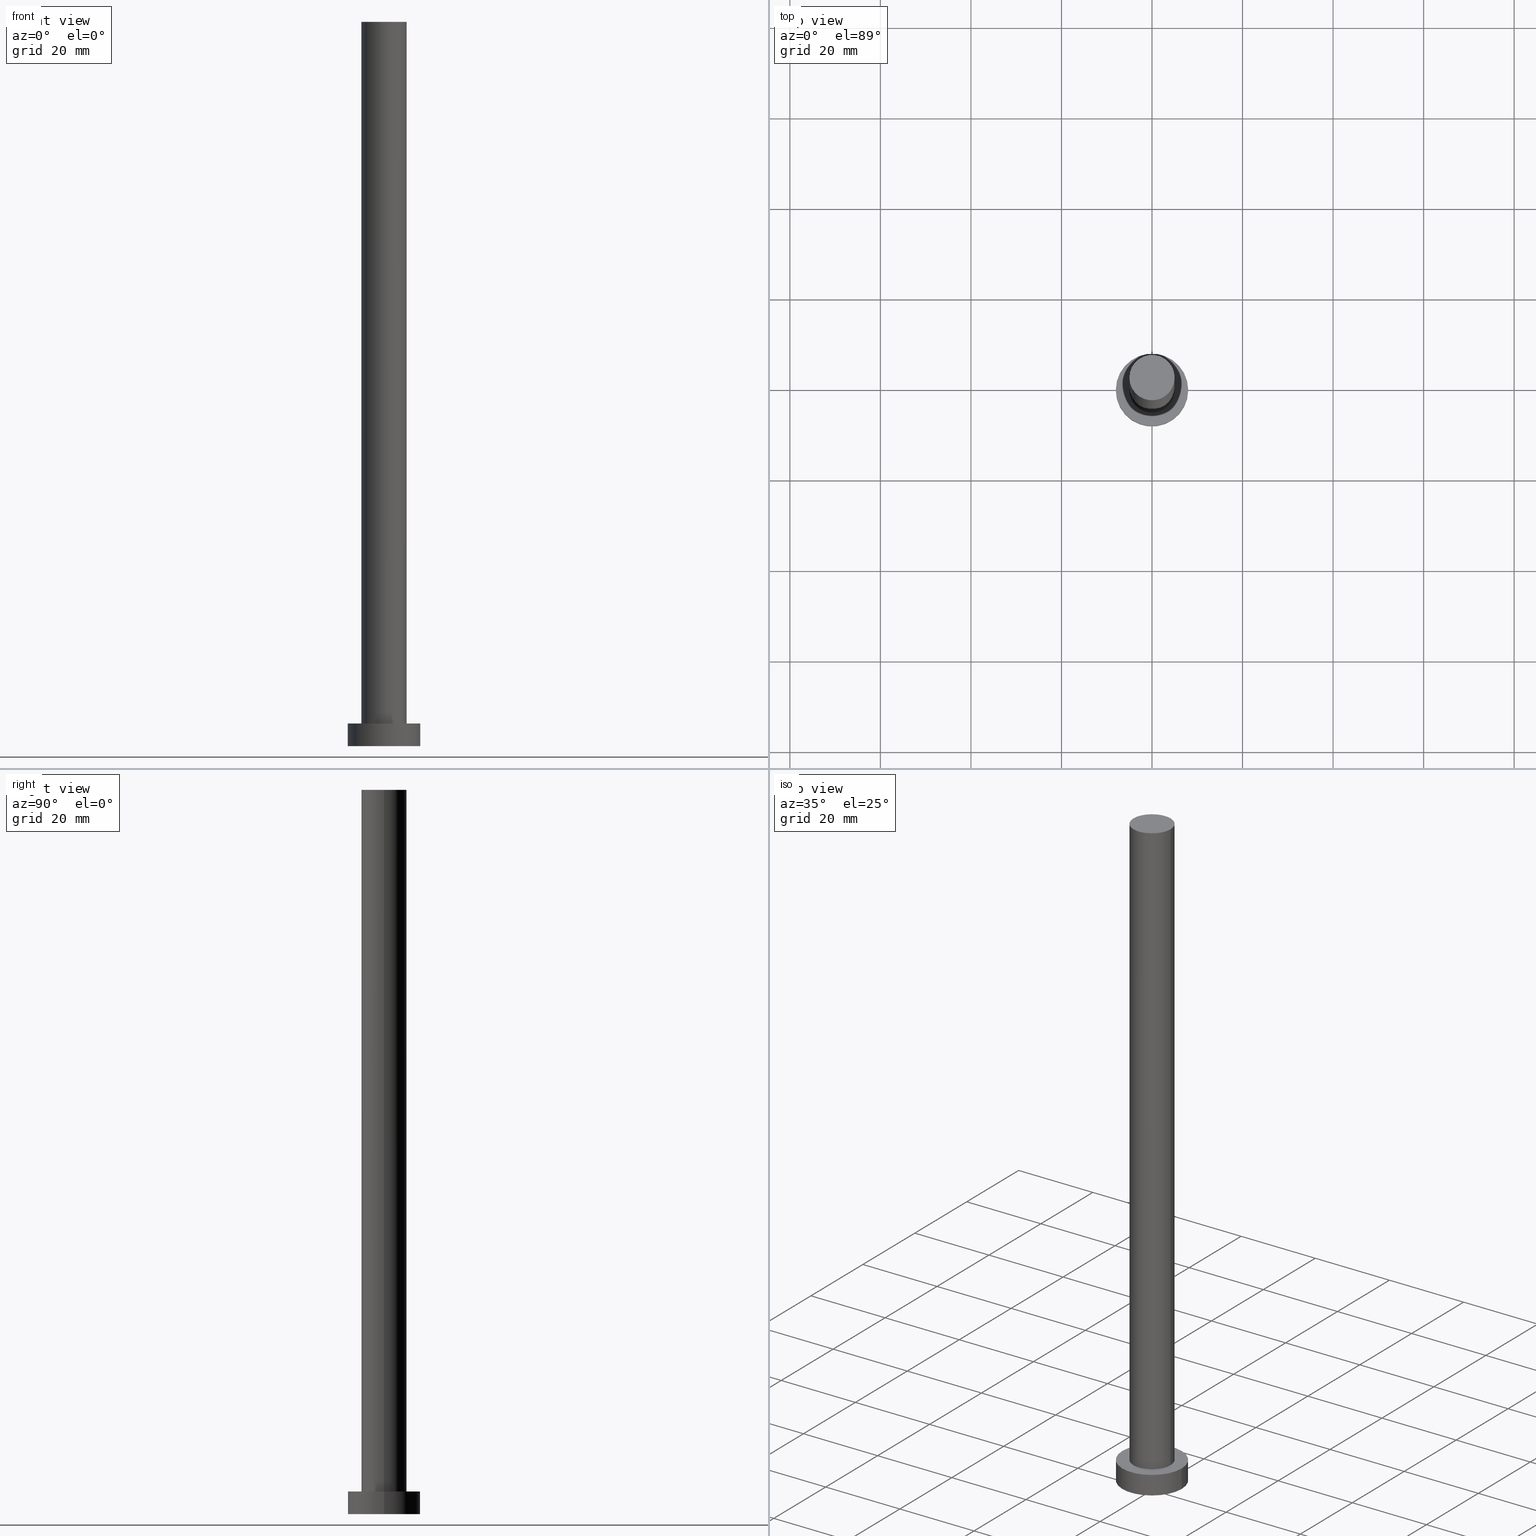
[diagram: canonical four-view strip — front | top / right | iso, engineering-drawing reading convention]
A machine part, canonical four-view strip (front | top / right | iso — engineering-drawing reading convention). The complete STEP part file that produces these views, byte-faithful:
ISO-10303-21;
HEADER;
FILE_DESCRIPTION (( 'STEP AP203' ),
    '1' );
FILE_NAME ('afb2.STEP',
    '2023-02-13T10:16:00',
    ( '' ),
    ( '' ),
    'SwSTEP 2.0',
    'SolidWorks 2019',
    '' );
FILE_SCHEMA (( 'CONFIG_CONTROL_DESIGN' ));
ENDSEC;

DATA;
#1 = CALENDAR_DATE ( 2023, 13, 2 ) ;
#2 = PERSON_AND_ORGANIZATION_ROLE ( 'creator' ) ;
#3 = UNCERTAINTY_MEASURE_WITH_UNIT (LENGTH_MEASURE( 1.000000000000000082E-05 ), #232, 'distance_accuracy_value', 'NONE');
#4 = PERSON_AND_ORGANIZATION ( #127, #212 ) ;
#5 = APPROVAL_PERSON_ORGANIZATION ( #186, #39, #183 ) ;
#6 = ORIENTED_EDGE ( 'NONE', *, *, #233, .T. ) ;
#7 = ORIENTED_EDGE ( 'NONE', *, *, #150, .T. ) ;
#8 = VECTOR ( 'NONE', #219, 1000.000000000000000 ) ;
#9 = DIRECTION ( 'NONE',  ( -1.000000000000000000, 0.000000000000000000, 0.000000000000000000 ) ) ;
#10 = CC_DESIGN_SECURITY_CLASSIFICATION ( #162, ( #104 ) ) ;
#11 = ADVANCED_FACE ( 'NONE', ( #191 ), #71, .T. ) ;
#12 = CARTESIAN_POINT ( 'NONE',  ( -8.000000000000000000, 0.000000000000000000, 0.000000000000000000 ) ) ;
#13 = EDGE_LOOP ( 'NONE', ( #226, #231 ) ) ;
#14 = CYLINDRICAL_SURFACE ( 'NONE', #139, 5.000000000000000000 ) ;
#15 = EDGE_CURVE ( 'NONE', #68, #213, #32, .T. ) ;
#16 = CC_DESIGN_APPROVAL ( #60, ( #104 ) ) ;
#17 = DIRECTION ( 'NONE',  ( 0.000000000000000000, 0.000000000000000000, 1.000000000000000000 ) ) ;
#18 = PLANE ( 'NONE',  #34 ) ;
#19 = FACE_OUTER_BOUND ( 'NONE', #13, .T. ) ;
#20 = AXIS2_PLACEMENT_3D ( 'NONE', #77, #155, #121 ) ;
#21 = DATE_AND_TIME ( #24, #49 ) ;
#22 = APPROVAL_DATE_TIME ( #125, #165 ) ;
#23 = LOCAL_TIME ( 11, 16, 0.000000000000000000, #44 ) ;
#24 = CALENDAR_DATE ( 2023, 13, 2 ) ;
#25 = PERSON_AND_ORGANIZATION ( #127, #212 ) ;
#26 = CC_DESIGN_PERSON_AND_ORGANIZATION_ASSIGNMENT ( #25, #2, ( #198 ) ) ;
#27 = ORIENTED_EDGE ( 'NONE', *, *, #189, .F. ) ;
#28 = AXIS2_PLACEMENT_3D ( 'NONE', #36, #80, #120 ) ;
#29 = ORIENTED_EDGE ( 'NONE', *, *, #64, .T. ) ;
#30 = FACE_OUTER_BOUND ( 'NONE', #109, .T. ) ;
#31 = CC_DESIGN_PERSON_AND_ORGANIZATION_ASSIGNMENT ( #203, #102, ( #190 ) ) ;
#32 = CIRCLE ( 'NONE', #108, 8.000000000000000000 ) ;
#33 = DIRECTION ( 'NONE',  ( 0.000000000000000000, 0.000000000000000000, 1.000000000000000000 ) ) ;
#34 = AXIS2_PLACEMENT_3D ( 'NONE', #79, #17, #40 ) ;
#35 = ORIENTED_EDGE ( 'NONE', *, *, #51, .T. ) ;
#36 = CARTESIAN_POINT ( 'NONE',  ( 0.000000000000000000, 0.000000000000000000, 0.000000000000000000 ) ) ;
#37 = DIRECTION ( 'NONE',  ( 0.000000000000000000, 0.000000000000000000, 1.000000000000000000 ) ) ;
#38 = CARTESIAN_POINT ( 'NONE',  ( 0.000000000000000000, 0.000000000000000000, 160.0000000000000000 ) ) ;
#39 = APPROVAL ( #105, 'NEUR�EN�' ) ;
#40 = DIRECTION ( 'NONE',  ( 1.000000000000000000, 0.000000000000000000, -0.000000000000000000 ) ) ;
#41 = CC_DESIGN_PERSON_AND_ORGANIZATION_ASSIGNMENT ( #128, #42, ( #104 ) ) ;
#42 = PERSON_AND_ORGANIZATION_ROLE ( 'design_supplier' ) ;
#43 = AXIS2_PLACEMENT_3D ( 'NONE', #159, #135, #137 ) ;
#44 = COORDINATED_UNIVERSAL_TIME_OFFSET ( 1, 0, .AHEAD. ) ;
#45 = APPLICATION_PROTOCOL_DEFINITION ( 'international standard', 'config_control_design', 1994, #61 ) ;
#46 = DATE_AND_TIME ( #220, #248 ) ;
#47 = CIRCLE ( 'NONE', #242, 5.000000000000000000 ) ;
#48 = CARTESIAN_POINT ( 'NONE',  ( 0.000000000000000000, 0.000000000000000000, 5.000000000000000000 ) ) ;
#49 = LOCAL_TIME ( 11, 16, 0.000000000000000000, #201 ) ;
#50 = ADVANCED_BREP_SHAPE_REPRESENTATION ( 'afb2', ( #103, #130 ), #167 ) ;
#51 = EDGE_CURVE ( 'NONE', #152, #147, #107, .T. ) ;
#52 = CARTESIAN_POINT ( 'NONE',  ( 8.000000000000000000, 9.797174393178825657E-16, 0.000000000000000000 ) ) ;
#53 = VERTEX_POINT ( 'NONE', #12 ) ;
#54 = CLOSED_SHELL ( 'NONE', ( #76, #136, #11, #158, #170, #224, #88 ) ) ;
#55 = CARTESIAN_POINT ( 'NONE',  ( 0.000000000000000000, 0.000000000000000000, 5.000000000000000000 ) ) ;
#56 = VERTEX_POINT ( 'NONE', #92 ) ;
#57 = FACE_OUTER_BOUND ( 'NONE', #188, .T. ) ;
#58 = FACE_OUTER_BOUND ( 'NONE', #169, .T. ) ;
#59 = CARTESIAN_POINT ( 'NONE',  ( 0.000000000000000000, 0.000000000000000000, 160.0000000000000000 ) ) ;
#60 = APPROVAL ( #160, 'NEUR�EN�' ) ;
#61 = APPLICATION_CONTEXT ( 'configuration controlled 3d designs of mechanical parts and assemblies' ) ;
#62 = DIRECTION ( 'NONE',  ( 1.000000000000000000, 0.000000000000000000, -0.000000000000000000 ) ) ;
#63 = APPROVAL_ROLE ( '' ) ;
#64 = EDGE_CURVE ( 'NONE', #56, #187, #161, .T. ) ;
#65 = PERSON_AND_ORGANIZATION_ROLE ( 'classification_officer' ) ;
#66 = APPROVAL_STATUS ( 'not_yet_approved' ) ;
#67 = AXIS2_PLACEMENT_3D ( 'NONE', #38, #37, #237 ) ;
#68 = VERTEX_POINT ( 'NONE', #228 ) ;
#69 = DIRECTION ( 'NONE',  ( -1.000000000000000000, 0.000000000000000000, 0.000000000000000000 ) ) ;
#70 = VERTEX_POINT ( 'NONE', #52 ) ;
#71 = CYLINDRICAL_SURFACE ( 'NONE', #251, 8.000000000000000000 ) ;
#72 = EDGE_LOOP ( 'NONE', ( #7, #29 ) ) ;
#73 = CARTESIAN_POINT ( 'NONE',  ( 5.000000000000000000, 6.123233995736766282E-16, 5.000000000000000000 ) ) ;
#74 = PRODUCT_DEFINITION_SHAPE ( 'NONE', 'NONE',  #198 ) ;
#75 = CYLINDRICAL_SURFACE ( 'NONE', #20, 8.000000000000000000 ) ;
#76 = ADVANCED_FACE ( 'NONE', ( #30 ), #132, .T. ) ;
#77 = CARTESIAN_POINT ( 'NONE',  ( 0.000000000000000000, 0.000000000000000000, 5.000000000000000000 ) ) ;
#78 = VECTOR ( 'NONE', #141, 1000.000000000000000 ) ;
#79 = CARTESIAN_POINT ( 'NONE',  ( 0.000000000000000000, 0.000000000000000000, 0.000000000000000000 ) ) ;
#80 = DIRECTION ( 'NONE',  ( 0.000000000000000000, 0.000000000000000000, 1.000000000000000000 ) ) ;
#81 = CARTESIAN_POINT ( 'NONE',  ( 0.000000000000000000, 0.000000000000000000, 0.000000000000000000 ) ) ;
#82 = CC_DESIGN_DATE_AND_TIME_ASSIGNMENT ( #185, #241, ( #198 ) ) ;
#83 = AXIS2_PLACEMENT_3D ( 'NONE', #246, #209, #9 ) ;
#84 = APPROVAL_PERSON_ORGANIZATION ( #106, #165, #101 ) ;
#85 = COORDINATED_UNIVERSAL_TIME_OFFSET ( 1, 0, .AHEAD. ) ;
#86 = COORDINATED_UNIVERSAL_TIME_OFFSET ( 1, 0, .AHEAD. ) ;
#87 = ORIENTED_EDGE ( 'NONE', *, *, #146, .F. ) ;
#88 = ADVANCED_FACE ( 'NONE', ( #172 ), #245, .T. ) ;
#89 = CARTESIAN_POINT ( 'NONE',  ( 0.000000000000000000, 0.000000000000000000, 5.000000000000000000 ) ) ;
#90 = AXIS2_PLACEMENT_3D ( 'NONE', #208, #244, #173 ) ;
#91 = ORIENTED_EDGE ( 'NONE', *, *, #15, .T. ) ;
#92 = CARTESIAN_POINT ( 'NONE',  ( 5.000000000000000000, 6.123233995736766282E-16, 160.0000000000000000 ) ) ;
#93 = CC_DESIGN_DATE_AND_TIME_ASSIGNMENT ( #21, #145, ( #162 ) ) ;
#94 = ORIENTED_EDGE ( 'NONE', *, *, #189, .T. ) ;
#95 = APPROVAL_PERSON_ORGANIZATION ( #4, #60, #63 ) ;
#96 = CARTESIAN_POINT ( 'NONE',  ( 0.000000000000000000, 0.000000000000000000, 160.0000000000000000 ) ) ;
#97 = EDGE_CURVE ( 'NONE', #68, #70, #180, .T. ) ;
#98 = LINE ( 'NONE', #178, #227 ) ;
#99 = DIRECTION ( 'NONE',  ( 0.000000000000000000, 0.000000000000000000, 1.000000000000000000 ) ) ;
#100 = FACE_OUTER_BOUND ( 'NONE', #153, .T. ) ;
#101 = APPROVAL_ROLE ( '' ) ;
#102 = PERSON_AND_ORGANIZATION_ROLE ( 'design_owner' ) ;
#103 = MANIFOLD_SOLID_BREP ( 'P�idat vysunut�m3', #54 ) ;
#104 = PRODUCT_DEFINITION_FORMATION_WITH_SPECIFIED_SOURCE ( 'LIBOVOLN�', '', #190, .NOT_KNOWN. ) ;
#105 = APPROVAL_STATUS ( 'not_yet_approved' ) ;
#106 = PERSON_AND_ORGANIZATION ( #127, #212 ) ;
#107 = CIRCLE ( 'NONE', #211, 5.000000000000000000 ) ;
#108 = AXIS2_PLACEMENT_3D ( 'NONE', #55, #33, #113 ) ;
#109 = EDGE_LOOP ( 'NONE', ( #247, #206, #35, #134 ) ) ;
#110 = CIRCLE ( 'NONE', #28, 8.000000000000000000 ) ;
#111 = ORIENTED_EDGE ( 'NONE', *, *, #15, .F. ) ;
#112 = ORIENTED_EDGE ( 'NONE', *, *, #146, .T. ) ;
#113 = DIRECTION ( 'NONE',  ( 1.000000000000000000, 0.000000000000000000, 0.000000000000000000 ) ) ;
#114 = EDGE_CURVE ( 'NONE', #56, #152, #216, .T. ) ;
#115 = APPLICATION_CONTEXT ( 'configuration controlled 3d designs of mechanical parts and assemblies' ) ;
#116 = ORIENTED_EDGE ( 'NONE', *, *, #150, .F. ) ;
#117 =( NAMED_UNIT ( * ) PLANE_ANGLE_UNIT ( ) SI_UNIT ( $, .RADIAN. ) );
#118 = CARTESIAN_POINT ( 'NONE',  ( 0.000000000000000000, 0.000000000000000000, 5.000000000000000000 ) ) ;
#119 = EDGE_CURVE ( 'NONE', #213, #53, #156, .T. ) ;
#120 = DIRECTION ( 'NONE',  ( 1.000000000000000000, 0.000000000000000000, 0.000000000000000000 ) ) ;
#121 = DIRECTION ( 'NONE',  ( -1.000000000000000000, 0.000000000000000000, 0.000000000000000000 ) ) ;
#122 = CIRCLE ( 'NONE', #67, 5.000000000000000000 ) ;
#123 = PERSON_AND_ORGANIZATION ( #127, #212 ) ;
#124 = MECHANICAL_CONTEXT ( 'NONE', #61, 'mechanical' ) ;
#125 = DATE_AND_TIME ( #222, #171 ) ;
#126 = CC_DESIGN_APPROVAL ( #165, ( #162 ) ) ;
#127 = PERSON ( 'NEUR�EN�', 'NEUR�EN�', 'NEUR�EN�', ('NEUR�EN�'), ('NEUR�EN�'), ('NEUR�EN�') ) ;
#128 = PERSON_AND_ORGANIZATION ( #127, #212 ) ;
#129 = DESIGN_CONTEXT ( 'detailed design', #115, 'design' ) ;
#130 = AXIS2_PLACEMENT_3D ( 'NONE', #81, #142, #223 ) ;
#131 = DIRECTION ( 'NONE',  ( 0.000000000000000000, 0.000000000000000000, 1.000000000000000000 ) ) ;
#132 = CYLINDRICAL_SURFACE ( 'NONE', #83, 5.000000000000000000 ) ;
#133 = ORIENTED_EDGE ( 'NONE', *, *, #119, .F. ) ;
#134 = ORIENTED_EDGE ( 'NONE', *, *, #182, .F. ) ;
#135 = DIRECTION ( 'NONE',  ( 0.000000000000000000, 0.000000000000000000, 1.000000000000000000 ) ) ;
#136 = ADVANCED_FACE ( 'NONE', ( #57 ), #75, .T. ) ;
#137 = DIRECTION ( 'NONE',  ( 1.000000000000000000, 0.000000000000000000, 0.000000000000000000 ) ) ;
#138 = DIRECTION ( 'NONE',  ( 1.000000000000000000, 0.000000000000000000, 0.000000000000000000 ) ) ;
#139 = AXIS2_PLACEMENT_3D ( 'NONE', #59, #214, #199 ) ;
#140 = CARTESIAN_POINT ( 'NONE',  ( -8.000000000000000000, 0.000000000000000000, 5.000000000000000000 ) ) ;
#141 = DIRECTION ( 'NONE',  ( -0.000000000000000000, -0.000000000000000000, -1.000000000000000000 ) ) ;
#142 = DIRECTION ( 'NONE',  ( 0.000000000000000000, 0.000000000000000000, 1.000000000000000000 ) ) ;
#143 = PERSON_AND_ORGANIZATION_ROLE ( 'creator' ) ;
#144 = ORIENTED_EDGE ( 'NONE', *, *, #97, .F. ) ;
#145 = DATE_TIME_ROLE ( 'classification_date' ) ;
#146 = EDGE_CURVE ( 'NONE', #147, #152, #47, .T. ) ;
#147 = VERTEX_POINT ( 'NONE', #197 ) ;
#148 = AXIS2_PLACEMENT_3D ( 'NONE', #154, #254, #62 ) ;
#149 = ORIENTED_EDGE ( 'NONE', *, *, #163, .T. ) ;
#150 = EDGE_CURVE ( 'NONE', #187, #56, #122, .T. ) ;
#151 = EDGE_LOOP ( 'NONE', ( #144, #27, #174, #6 ) ) ;
#152 = VERTEX_POINT ( 'NONE', #73 ) ;
#153 = EDGE_LOOP ( 'NONE', ( #94, #91 ) ) ;
#154 = CARTESIAN_POINT ( 'NONE',  ( 0.000000000000000000, 0.000000000000000000, 5.000000000000000000 ) ) ;
#155 = DIRECTION ( 'NONE',  ( -0.000000000000000000, -0.000000000000000000, -1.000000000000000000 ) ) ;
#156 = LINE ( 'NONE', #140, #8 ) ;
#157 = DIRECTION ( 'NONE',  ( 1.000000000000000000, 0.000000000000000000, -0.000000000000000000 ) ) ;
#158 = ADVANCED_FACE ( 'NONE', ( #176, #100 ), #235, .T. ) ;
#159 = CARTESIAN_POINT ( 'NONE',  ( 0.000000000000000000, 0.000000000000000000, 5.000000000000000000 ) ) ;
#160 = APPROVAL_STATUS ( 'not_yet_approved' ) ;
#161 = CIRCLE ( 'NONE', #90, 5.000000000000000000 ) ;
#162 = SECURITY_CLASSIFICATION ( '', '', #240 ) ;
#163 = EDGE_CURVE ( 'NONE', #70, #53, #110, .T. ) ;
#164 = APPROVAL_DATE_TIME ( #46, #60 ) ;
#165 = APPROVAL ( #66, 'NEUR�EN�' ) ;
#166 = PERSON_AND_ORGANIZATION ( #127, #212 ) ;
#167 =( GEOMETRIC_REPRESENTATION_CONTEXT ( 3 ) GLOBAL_UNCERTAINTY_ASSIGNED_CONTEXT ( ( #3 ) ) GLOBAL_UNIT_ASSIGNED_CONTEXT ( ( #232, #117, #179 ) ) REPRESENTATION_CONTEXT ( 'NONE', 'WORKASPACE' ) );
#168 = EDGE_LOOP ( 'NONE', ( #87, #243 ) ) ;
#169 = EDGE_LOOP ( 'NONE', ( #210, #116, #194, #112 ) ) ;
#170 = ADVANCED_FACE ( 'NONE', ( #19 ), #18, .F. ) ;
#171 = LOCAL_TIME ( 11, 16, 0.000000000000000000, #181 ) ;
#172 = FACE_OUTER_BOUND ( 'NONE', #72, .T. ) ;
#173 = DIRECTION ( 'NONE',  ( 1.000000000000000000, 0.000000000000000000, 0.000000000000000000 ) ) ;
#174 = ORIENTED_EDGE ( 'NONE', *, *, #119, .T. ) ;
#175 = PRODUCT_RELATED_PRODUCT_CATEGORY ( 'detail', '', ( #190 ) ) ;
#176 = FACE_BOUND ( 'NONE', #168, .T. ) ;
#177 = CIRCLE ( 'NONE', #43, 8.000000000000000000 ) ;
#178 = CARTESIAN_POINT ( 'NONE',  ( -5.000000000000000000, 0.000000000000000000, 160.0000000000000000 ) ) ;
#179 =( NAMED_UNIT ( * ) SI_UNIT ( $, .STERADIAN. ) SOLID_ANGLE_UNIT ( ) );
#180 = LINE ( 'NONE', #252, #192 ) ;
#181 = COORDINATED_UNIVERSAL_TIME_OFFSET ( 1, 0, .AHEAD. ) ;
#182 = EDGE_CURVE ( 'NONE', #187, #147, #98, .T. ) ;
#183 = APPROVAL_ROLE ( '' ) ;
#184 = AXIS2_PLACEMENT_3D ( 'NONE', #96, #218, #157 ) ;
#185 = DATE_AND_TIME ( #1, #236 ) ;
#186 = PERSON_AND_ORGANIZATION ( #127, #212 ) ;
#187 = VERTEX_POINT ( 'NONE', #215 ) ;
#188 = EDGE_LOOP ( 'NONE', ( #111, #229, #149, #133 ) ) ;
#189 = EDGE_CURVE ( 'NONE', #213, #68, #177, .T. ) ;
#190 = PRODUCT ( 'afb2', 'afb2', '', ( #124 ) ) ;
#191 = FACE_OUTER_BOUND ( 'NONE', #151, .T. ) ;
#192 = VECTOR ( 'NONE', #250, 1000.000000000000000 ) ;
#193 = DIRECTION ( 'NONE',  ( 1.000000000000000000, 0.000000000000000000, 0.000000000000000000 ) ) ;
#194 = ORIENTED_EDGE ( 'NONE', *, *, #182, .T. ) ;
#195 = CARTESIAN_POINT ( 'NONE',  ( 5.000000000000000000, 6.123233995736766282E-16, 160.0000000000000000 ) ) ;
#196 = DIRECTION ( 'NONE',  ( 0.000000000000000000, 0.000000000000000000, 1.000000000000000000 ) ) ;
#197 = CARTESIAN_POINT ( 'NONE',  ( -5.000000000000000000, 0.000000000000000000, 5.000000000000000000 ) ) ;
#198 = PRODUCT_DEFINITION ( 'NEZN�M�', '', #104, #129 ) ;
#199 = DIRECTION ( 'NONE',  ( -1.000000000000000000, 0.000000000000000000, 0.000000000000000000 ) ) ;
#200 = CARTESIAN_POINT ( 'NONE',  ( 0.000000000000000000, 0.000000000000000000, 0.000000000000000000 ) ) ;
#201 = COORDINATED_UNIVERSAL_TIME_OFFSET ( 1, 0, .AHEAD. ) ;
#202 = CC_DESIGN_PERSON_AND_ORGANIZATION_ASSIGNMENT ( #166, #143, ( #104 ) ) ;
#203 = PERSON_AND_ORGANIZATION ( #127, #212 ) ;
#204 = DATE_AND_TIME ( #225, #23 ) ;
#205 = SHAPE_DEFINITION_REPRESENTATION ( #74, #50 ) ;
#206 = ORIENTED_EDGE ( 'NONE', *, *, #114, .T. ) ;
#207 = CC_DESIGN_APPROVAL ( #39, ( #198 ) ) ;
#208 = CARTESIAN_POINT ( 'NONE',  ( 0.000000000000000000, 0.000000000000000000, 160.0000000000000000 ) ) ;
#209 = DIRECTION ( 'NONE',  ( -0.000000000000000000, -0.000000000000000000, -1.000000000000000000 ) ) ;
#210 = ORIENTED_EDGE ( 'NONE', *, *, #114, .F. ) ;
#211 = AXIS2_PLACEMENT_3D ( 'NONE', #48, #131, #193 ) ;
#212 = ORGANIZATION ( 'NEUR�EN�', 'NEUR�EN�', '' ) ;
#213 = VERTEX_POINT ( 'NONE', #234 ) ;
#214 = DIRECTION ( 'NONE',  ( -0.000000000000000000, -0.000000000000000000, -1.000000000000000000 ) ) ;
#215 = CARTESIAN_POINT ( 'NONE',  ( -5.000000000000000000, 0.000000000000000000, 160.0000000000000000 ) ) ;
#216 = LINE ( 'NONE', #195, #78 ) ;
#217 = CIRCLE ( 'NONE', #221, 8.000000000000000000 ) ;
#218 = DIRECTION ( 'NONE',  ( 0.000000000000000000, 0.000000000000000000, 1.000000000000000000 ) ) ;
#219 = DIRECTION ( 'NONE',  ( -0.000000000000000000, -0.000000000000000000, -1.000000000000000000 ) ) ;
#220 = CALENDAR_DATE ( 2023, 13, 2 ) ;
#221 = AXIS2_PLACEMENT_3D ( 'NONE', #200, #99, #138 ) ;
#222 = CALENDAR_DATE ( 2023, 13, 2 ) ;
#223 = DIRECTION ( 'NONE',  ( 1.000000000000000000, 0.000000000000000000, 0.000000000000000000 ) ) ;
#224 = ADVANCED_FACE ( 'NONE', ( #58 ), #14, .T. ) ;
#225 = CALENDAR_DATE ( 2023, 13, 2 ) ;
#226 = ORIENTED_EDGE ( 'NONE', *, *, #233, .F. ) ;
#227 = VECTOR ( 'NONE', #249, 1000.000000000000000 ) ;
#228 = CARTESIAN_POINT ( 'NONE',  ( 8.000000000000000000, 9.797174393178825657E-16, 5.000000000000000000 ) ) ;
#229 = ORIENTED_EDGE ( 'NONE', *, *, #97, .T. ) ;
#230 = DIRECTION ( 'NONE',  ( -0.000000000000000000, -0.000000000000000000, -1.000000000000000000 ) ) ;
#231 = ORIENTED_EDGE ( 'NONE', *, *, #163, .F. ) ;
#232 =( LENGTH_UNIT ( ) NAMED_UNIT ( * ) SI_UNIT ( .MILLI., .METRE. ) );
#233 = EDGE_CURVE ( 'NONE', #53, #70, #217, .T. ) ;
#234 = CARTESIAN_POINT ( 'NONE',  ( -8.000000000000000000, 0.000000000000000000, 5.000000000000000000 ) ) ;
#235 = PLANE ( 'NONE',  #148 ) ;
#236 = LOCAL_TIME ( 11, 16, 0.000000000000000000, #86 ) ;
#237 = DIRECTION ( 'NONE',  ( 1.000000000000000000, 0.000000000000000000, 0.000000000000000000 ) ) ;
#238 = DIRECTION ( 'NONE',  ( 1.000000000000000000, 0.000000000000000000, 0.000000000000000000 ) ) ;
#239 = APPLICATION_PROTOCOL_DEFINITION ( 'international standard', 'config_control_design', 1994, #115 ) ;
#240 = SECURITY_CLASSIFICATION_LEVEL ( 'unclassified' ) ;
#241 = DATE_TIME_ROLE ( 'creation_date' ) ;
#242 = AXIS2_PLACEMENT_3D ( 'NONE', #118, #196, #238 ) ;
#243 = ORIENTED_EDGE ( 'NONE', *, *, #51, .F. ) ;
#244 = DIRECTION ( 'NONE',  ( 0.000000000000000000, 0.000000000000000000, 1.000000000000000000 ) ) ;
#245 = PLANE ( 'NONE',  #184 ) ;
#246 = CARTESIAN_POINT ( 'NONE',  ( 0.000000000000000000, 0.000000000000000000, 160.0000000000000000 ) ) ;
#247 = ORIENTED_EDGE ( 'NONE', *, *, #64, .F. ) ;
#248 = LOCAL_TIME ( 11, 16, 0.000000000000000000, #85 ) ;
#249 = DIRECTION ( 'NONE',  ( -0.000000000000000000, -0.000000000000000000, -1.000000000000000000 ) ) ;
#250 = DIRECTION ( 'NONE',  ( -0.000000000000000000, -0.000000000000000000, -1.000000000000000000 ) ) ;
#251 = AXIS2_PLACEMENT_3D ( 'NONE', #89, #230, #69 ) ;
#252 = CARTESIAN_POINT ( 'NONE',  ( 8.000000000000000000, 9.797174393178825657E-16, 5.000000000000000000 ) ) ;
#253 = CC_DESIGN_PERSON_AND_ORGANIZATION_ASSIGNMENT ( #123, #65, ( #162 ) ) ;
#254 = DIRECTION ( 'NONE',  ( 0.000000000000000000, 0.000000000000000000, 1.000000000000000000 ) ) ;
#255 = APPROVAL_DATE_TIME ( #204, #39 ) ;
ENDSEC;
END-ISO-10303-21;
